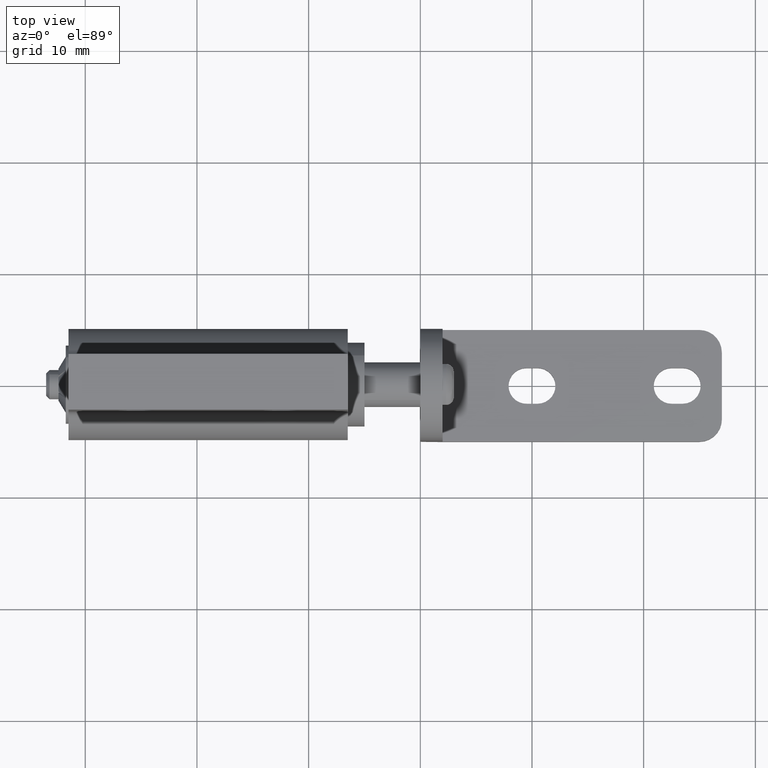
[diagram: clean part render]
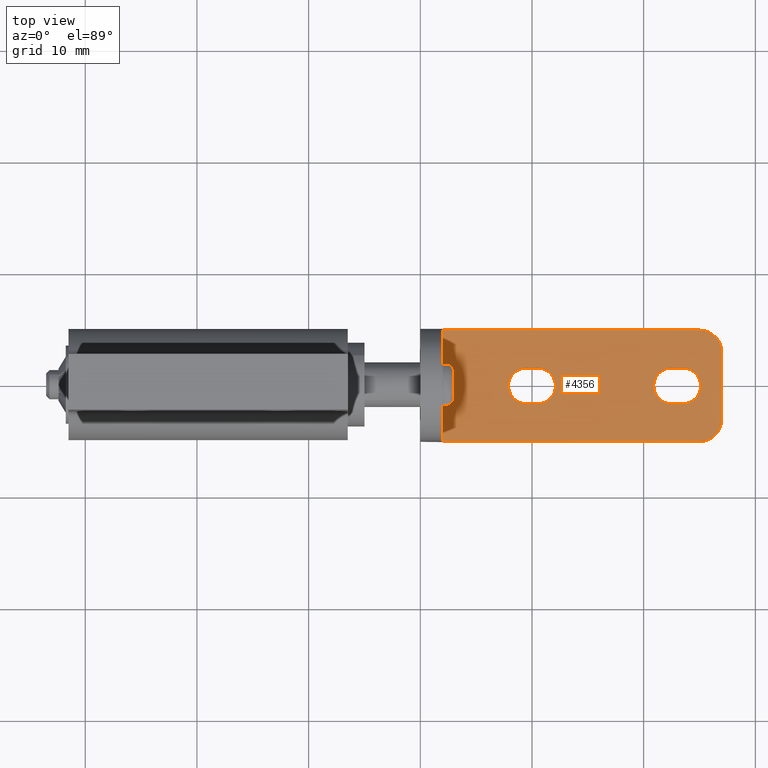
[diagram: same view with one face highlighted and labeled with its STEP entity id]
A machine part, top view. The second image highlights one B-rep face of the part: STEP entity #4356.
In plain terms, the highlighted face is a freeform B-spline surface patch.
Its self-contained STEP definition (entity closure, byte-faithful):
#4144=CARTESIAN_POINT('',(0.751250048454852,-5.499499980618060,-5.999999999999920));
#4145=CARTESIAN_POINT('',(28.248750622097401,-5.499499980618060,-5.999999999999920));
#4146=CARTESIAN_POINT('',(0.751250048454852,5.499500248838961,-5.999999999999920));
#4147=CARTESIAN_POINT('',(28.248750622097401,5.499500248838961,-5.999999999999920));
#4148=B_SPLINE_SURFACE_WITH_KNOTS('',1,1,((#4144,#4146),(#4145,#4147)),.UNSPECIFIED.,.F.,.F.,.U.,(2,2),(2,2),(0.0,27.497500573642551),(0.0,10.999000229457019),.UNSPECIFIED.);
#4149=CARTESIAN_POINT('',(2.0,5.0,-5.999999999999920));
#4150=VERTEX_POINT('',#4149);
#4151=CARTESIAN_POINT('',(25.0,5.0,-5.999999999999890));
#4152=VERTEX_POINT('',#4151);
#4153=CARTESIAN_POINT('',(2.0,5.0,-5.999999999999920));
#4154=CARTESIAN_POINT('',(25.0,5.0,-5.999999999999890));
#4155=QUASI_UNIFORM_CURVE('',1,(#4153,#4154),.UNSPECIFIED.,.F.,.U.);
#4156=EDGE_CURVE('',#4150,#4152,#4155,.T.);
#4157=ORIENTED_EDGE('',*,*,#4156,.F.);
#4158=CARTESIAN_POINT('',(2.0,-5.0,-5.999999999999920));
#4159=VERTEX_POINT('',#4158);
#4160=CARTESIAN_POINT('',(2.0,5.0,-5.999999999999920));
#4161=CARTESIAN_POINT('',(2.0,-5.0,-5.999999999999920));
#4162=QUASI_UNIFORM_CURVE('',1,(#4160,#4161),.UNSPECIFIED.,.F.,.U.);
#4163=EDGE_CURVE('',#4150,#4159,#4162,.T.);
#4164=ORIENTED_EDGE('',*,*,#4163,.T.);
#4165=CARTESIAN_POINT('',(25.0,-5.0,-5.999999999999890));
#4166=VERTEX_POINT('',#4165);
#4167=CARTESIAN_POINT('',(25.0,-5.0,-5.999999999999890));
#4168=CARTESIAN_POINT('',(2.0,-5.0,-5.999999999999920));
#4169=QUASI_UNIFORM_CURVE('',1,(#4167,#4168),.UNSPECIFIED.,.F.,.U.);
#4170=EDGE_CURVE('',#4166,#4159,#4169,.T.);
#4171=ORIENTED_EDGE('',*,*,#4170,.F.);
#4172=CARTESIAN_POINT('',(27.0,-3.0,-5.999999999999890));
#4173=VERTEX_POINT('',#4172);
#4174=CARTESIAN_POINT('',(25.0,-5.0,-5.999999999999890));
#4175=CARTESIAN_POINT('',(25.229101298612349,-5.000175970946732,-5.999999999999907));
#4176=CARTESIAN_POINT('',(25.572595589733041,-4.940290055348859,-5.999999999999865));
#4177=CARTESIAN_POINT('',(25.968257489761481,-4.759000320419328,-5.999999999999901));
#4178=CARTESIAN_POINT('',(26.276344513602730,-4.555916297014519,-5.999999999999915));
#4179=CARTESIAN_POINT('',(26.559530381454088,-4.279599096245009,-5.999999999999869));
#4180=CARTESIAN_POINT('',(26.777225957385429,-3.940378293420738,-5.999999999999935));
#4181=CARTESIAN_POINT('',(26.949908898931341,-3.523531810703181,-5.999999999999752));
#4182=CARTESIAN_POINT('',(27.000132040713691,-3.212731915100730,-6.000000000000080));
#4183=CARTESIAN_POINT('',(27.0,-3.0,-5.999999999999890));
#4184=B_SPLINE_CURVE_WITH_KNOTS('',3,(#4174,#4175,#4176,#4177,#4178,#4179,#4180,#4181,#4182,#4183),.UNSPECIFIED.,.F.,.U.,(4,1,1,1,1,1,1,4),(0.000000074897178,0.687225974660093,1.030846058387739,1.300831581982499,1.791700630484696,2.208942672249622,2.503475914182970,3.141612365757053),.UNSPECIFIED.);
#4185=EDGE_CURVE('',#4166,#4173,#4184,.T.);
#4186=ORIENTED_EDGE('',*,*,#4185,.T.);
#4187=CARTESIAN_POINT('',(27.0,3.0,-5.999999999999890));
#4188=VERTEX_POINT('',#4187);
#4189=CARTESIAN_POINT('',(27.0,3.0,-5.999999999999890));
#4190=CARTESIAN_POINT('',(27.0,-3.0,-5.999999999999890));
#4191=QUASI_UNIFORM_CURVE('',1,(#4189,#4190),.UNSPECIFIED.,.F.,.U.);
#4192=EDGE_CURVE('',#4188,#4173,#4191,.T.);
#4193=ORIENTED_EDGE('',*,*,#4192,.F.);
#4194=CARTESIAN_POINT('',(27.0,3.0,-5.999999999999890));
#4195=CARTESIAN_POINT('',(27.000008992554459,3.122716183516850,-5.999999999999885));
#4196=CARTESIAN_POINT('',(26.975091084685371,3.392699853700532,-5.999999999999919));
#4197=CARTESIAN_POINT('',(26.865180732788328,3.755026520126796,-5.999999999999838));
#4198=CARTESIAN_POINT('',(26.681595443398511,4.103601488064341,-5.999999999999973));
#4199=CARTESIAN_POINT('',(26.411303088976400,4.445685483341501,-5.999999999999852));
#4200=CARTESIAN_POINT('',(26.044786401452530,4.728114787095117,-5.999999999999679));
#4201=CARTESIAN_POINT('',(25.556252822054152,4.944629541255508,-6.000000000000235));
#4202=CARTESIAN_POINT('',(25.212727886733251,5.000127405484935,-5.999999999999698));
#4203=CARTESIAN_POINT('',(25.0,5.0,-5.999999999999890));
#4204=B_SPLINE_CURVE_WITH_KNOTS('',3,(#4194,#4195,#4196,#4197,#4198,#4199,#4200,#4201,#4202,#4203),.UNSPECIFIED.,.F.,.U.,(4,1,1,1,1,1,1,4),(0.000000074891697,0.368152309377549,0.809947288283777,1.129017942045743,1.546284932785509,2.110768140818327,2.503475914182498,3.141612365757115),.UNSPECIFIED.);
#4205=EDGE_CURVE('',#4188,#4152,#4204,.T.);
#4206=ORIENTED_EDGE('',*,*,#4205,.T.);
#4207=EDGE_LOOP('',(#4157,#4164,#4171,#4186,#4193,#4206));
#4208=FACE_OUTER_BOUND('',#4207,.T.);
#4209=CARTESIAN_POINT('',(9.499999999999321,-1.599999999999910,-5.999999999999890));
#4210=VERTEX_POINT('',#4209);
#4211=CARTESIAN_POINT('',(10.500000000000339,-1.599999999999910,-5.999999999999890));
#4212=VERTEX_POINT('',#4211);
#4213=CARTESIAN_POINT('',(9.499999999999321,-1.599999999999910,-5.999999999999890));
#4214=CARTESIAN_POINT('',(10.500000000000339,-1.599999999999910,-5.999999999999890));
#4215=QUASI_UNIFORM_CURVE('',1,(#4213,#4214),.UNSPECIFIED.,.F.,.U.);
#4216=EDGE_CURVE('',#4210,#4212,#4215,.T.);
#4217=ORIENTED_EDGE('',*,*,#4216,.F.);
#4218=CARTESIAN_POINT('',(7.899999999999650,-0.000000876066275,-5.999999999999890));
#4219=VERTEX_POINT('',#4218);
#4220=CARTESIAN_POINT('',(7.899999999999650,-0.000000876066275,-5.999999999999890));
#4221=CARTESIAN_POINT('',(7.899930954234748,-0.157085153060016,-5.999999999999887));
#4222=CARTESIAN_POINT('',(7.946638123642404,-0.471213233963859,-5.999999999999893));
#4223=CARTESIAN_POINT('',(8.127628203936977,-0.854007373605920,-5.999999999999891));
#4224=CARTESIAN_POINT('',(8.361345646486987,-1.138659330561994,-5.999999999999891));
#4225=CARTESIAN_POINT('',(8.605357094624653,-1.338920417722759,-5.999999999999892));
#4226=CARTESIAN_POINT('',(8.976544413417017,-1.537393991827413,-5.999999999999887));
#4227=CARTESIAN_POINT('',(9.290517388937019,-1.600234236174146,-5.999999999999897));
#4228=CARTESIAN_POINT('',(9.499999999999321,-1.599999999999910,-5.999999999999890));
#4229=B_SPLINE_CURVE_WITH_KNOTS('',3,(#4220,#4221,#4222,#4223,#4224,#4225,#4226,#4227,#4228),.UNSPECIFIED.,.F.,.U.,(4,1,1,1,1,1,4),(0.000000024243023,0.471244596527504,0.942508694478236,1.256668358901865,1.570827732921744,1.885002528225996,2.513336697157448),.UNSPECIFIED.);
#4230=EDGE_CURVE('',#4219,#4210,#4229,.T.);
#4231=ORIENTED_EDGE('',*,*,#4230,.F.);
#4232=CARTESIAN_POINT('',(9.499999999999321,1.600000000000000,-5.999999999999890));
#4233=VERTEX_POINT('',#4232);
#4234=CARTESIAN_POINT('',(9.499999999999321,1.600000000000000,-5.999999999999890));
#4235=CARTESIAN_POINT('',(9.342913029642439,1.600074970997122,-5.999999999999882));
#4236=CARTESIAN_POINT('',(9.081157276978733,1.561115276048454,-5.999999999999907));
#4237=CARTESIAN_POINT('',(8.740904265006304,1.420169838847041,-5.999999999999876));
#4238=CARTESIAN_POINT('',(8.434650481340130,1.215584147826057,-5.999999999999888));
#4239=CARTESIAN_POINT('',(8.185820296293517,0.941092164951092,-5.999999999999912));
#4240=CARTESIAN_POINT('',(8.024677508870076,0.639430013100027,-5.999999999999862));
#4241=CARTESIAN_POINT('',(7.925856384613207,0.340319600040738,-5.999999999999917));
#4242=CARTESIAN_POINT('',(7.899965356264975,0.130900052835305,-5.999999999999873));
#4243=CARTESIAN_POINT('',(7.899999999999650,-0.000000876066275,-5.999999999999890));
#4244=B_SPLINE_CURVE_WITH_KNOTS('',3,(#4234,#4235,#4236,#4237,#4238,#4239,#4240,#4241,#4242,#4243),.UNSPECIFIED.,.F.,.U.,(4,1,1,1,1,1,1,4),(0.000000023041375,0.471244780649425,0.785423896812353,1.099589344189616,1.570828349246691,1.885003269217762,2.120636193895954,2.513337684713010),.UNSPECIFIED.);
#4245=EDGE_CURVE('',#4233,#4219,#4244,.T.);
#4246=ORIENTED_EDGE('',*,*,#4245,.F.);
#4247=CARTESIAN_POINT('',(10.500000000000339,1.600000000000000,-5.999999999999890));
#4248=VERTEX_POINT('',#4247);
#4249=CARTESIAN_POINT('',(10.500000000000339,1.600000000000000,-5.999999999999890));
#4250=CARTESIAN_POINT('',(9.499999999999321,1.600000000000000,-5.999999999999890));
#4251=QUASI_UNIFORM_CURVE('',1,(#4249,#4250),.UNSPECIFIED.,.F.,.U.);
#4252=EDGE_CURVE('',#4248,#4233,#4251,.T.);
#4253=ORIENTED_EDGE('',*,*,#4252,.F.);
#4254=CARTESIAN_POINT('',(12.100000000000010,0.000000876066298,-5.999999999999889));
#4255=VERTEX_POINT('',#4254);
#4256=CARTESIAN_POINT('',(12.100000000000010,0.000000876066298,-5.999999999999889));
#4257=CARTESIAN_POINT('',(12.100076960069041,0.157089367976271,-5.999999999999889));
#4258=CARTESIAN_POINT('',(12.065005063557489,0.392662628713046,-5.999999999999891));
#4259=CARTESIAN_POINT('',(11.942173942035840,0.711059727324396,-5.999999999999887));
#4260=CARTESIAN_POINT('',(11.779912069732640,0.981847419181617,-5.999999999999897));
#4261=CARTESIAN_POINT('',(11.543456785460609,1.230182762675325,-5.999999999999871));
#4262=CARTESIAN_POINT('',(11.259099112727240,1.420173450062146,-5.999999999999929));
#4263=CARTESIAN_POINT('',(10.918842336454629,1.561115346589316,-5.999999999999855));
#4264=CARTESIAN_POINT('',(10.657087034021259,1.600075195214799,-5.999999999999905));
#4265=CARTESIAN_POINT('',(10.500000000000339,1.600000000000000,-5.999999999999890));
#4266=B_SPLINE_CURVE_WITH_KNOTS('',3,(#4256,#4257,#4258,#4259,#4260,#4261,#4262,#4263,#4264,#4265),.UNSPECIFIED.,.F.,.U.,(4,1,1,1,1,1,1,4),(0.000000024243588,0.471244596527909,0.706879246523735,1.021049268495416,1.413747510192749,1.727913035025433,2.042092021713942,2.513336697157483),.UNSPECIFIED.);
#4267=EDGE_CURVE('',#4255,#4248,#4266,.T.);
#4268=ORIENTED_EDGE('',*,*,#4267,.F.);
#4269=CARTESIAN_POINT('',(10.500000000000339,-1.599999999999910,-5.999999999999890));
#4270=CARTESIAN_POINT('',(10.709460513686549,-1.600209713929248,-5.999999999999869));
#4271=CARTESIAN_POINT('',(11.075845954610360,-1.526990796331000,-5.999999999999932));
#4272=CARTESIAN_POINT('',(11.484377838452140,-1.282014573674328,-5.999999999999851));
#4273=CARTESIAN_POINT('',(11.782029302703091,-0.984390478947366,-5.999999999999923));
#4274=CARTESIAN_POINT('',(12.026970343649531,-0.575829757406991,-5.999999999999862));
#4275=CARTESIAN_POINT('',(12.100219917556769,-0.209466451154226,-5.999999999999897));
#4276=CARTESIAN_POINT('',(12.100000000000010,0.000000876066298,-5.999999999999889));
#4277=B_SPLINE_CURVE_WITH_KNOTS('',3,(#4269,#4270,#4271,#4272,#4273,#4274,#4275,#4276),.UNSPECIFIED.,.F.,.U.,(4,1,1,1,1,4),(0.000000023042294,0.628334493925762,1.099589344189766,1.413748063708039,1.885003269217731,2.513337684712968),.UNSPECIFIED.);
#4278=EDGE_CURVE('',#4212,#4255,#4277,.T.);
#4279=ORIENTED_EDGE('',*,*,#4278,.F.);
#4280=EDGE_LOOP('',(#4217,#4231,#4246,#4253,#4268,#4279));
#4281=FACE_BOUND('',#4280,.T.);
#4282=CARTESIAN_POINT('',(23.500000000000352,1.599999999999910,-5.999999999999890));
#4283=VERTEX_POINT('',#4282);
#4284=CARTESIAN_POINT('',(22.499999999999250,1.599999999999910,-5.999999999999890));
#4285=VERTEX_POINT('',#4284);
#4286=CARTESIAN_POINT('',(23.500000000000352,1.599999999999910,-5.999999999999890));
#4287=CARTESIAN_POINT('',(22.499999999999250,1.599999999999910,-5.999999999999890));
#4288=QUASI_UNIFORM_CURVE('',1,(#4286,#4287),.UNSPECIFIED.,.F.,.U.);
#4289=EDGE_CURVE('',#4283,#4285,#4288,.T.);
#4290=ORIENTED_EDGE('',*,*,#4289,.F.);
#4291=CARTESIAN_POINT('',(25.100000000000019,0.000000876066298,-5.999999999999889));
#4292=VERTEX_POINT('',#4291);
#4293=CARTESIAN_POINT('',(25.100000000000019,0.000000876066298,-5.999999999999889));
#4294=CARTESIAN_POINT('',(25.100213319210301,0.209486858936259,-5.999999999999890));
#4295=CARTESIAN_POINT('',(25.037389952760090,0.523433326622136,-5.999999999999889));
#4296=CARTESIAN_POINT('',(24.814162727790539,0.941088940609201,-5.999999999999887));
#4297=CARTESIAN_POINT('',(24.565350021458219,1.215585605246862,-5.999999999999893));
#4298=CARTESIAN_POINT('',(24.259094956786431,1.420167841987817,-5.999999999999885));
#4299=CARTESIAN_POINT('',(23.918845073894691,1.561126861632027,-5.999999999999890));
#4300=CARTESIAN_POINT('',(23.657085199171899,1.600063588880018,-5.999999999999893));
#4301=CARTESIAN_POINT('',(23.500000000000352,1.599999999999910,-5.999999999999890));
#4302=B_SPLINE_CURVE_WITH_KNOTS('',3,(#4293,#4294,#4295,#4296,#4297,#4298,#4299,#4300,#4301),.UNSPECIFIED.,.F.,.U.,(4,1,1,1,1,1,4),(0.000000024242703,0.628334248026976,0.942508694477993,1.413747510192394,1.727913035025169,2.042092021713769,2.513336697157411),.UNSPECIFIED.);
#4303=EDGE_CURVE('',#4292,#4283,#4302,.T.);
#4304=ORIENTED_EDGE('',*,*,#4303,.F.);
#4305=CARTESIAN_POINT('',(23.500000000000352,-1.599999999999910,-5.999999999999890));
#4306=VERTEX_POINT('',#4305);
#4307=CARTESIAN_POINT('',(23.500000000000352,-1.599999999999910,-5.999999999999890));
#4308=CARTESIAN_POINT('',(23.657087667688309,-1.600074952450935,-5.999999999999884));
#4309=CARTESIAN_POINT('',(23.918840934255329,-1.561115495927941,-5.999999999999900));
#4310=CARTESIAN_POINT('',(24.259100875822970,-1.420171931218506,-5.999999999999883));
#4311=CARTESIAN_POINT('',(24.521576441416030,-1.244790835991941,-5.999999999999895));
#4312=CARTESIAN_POINT('',(24.726181932976839,-1.040171991387414,-5.999999999999884));
#4313=CARTESIAN_POINT('',(24.892451962037459,-0.804084707074152,-5.999999999999885));
#4314=CARTESIAN_POINT('',(25.049951066179059,-0.471164617096889,-5.999999999999918));
#4315=CARTESIAN_POINT('',(25.100141107871220,-0.183278424803693,-5.999999999999877));
#4316=CARTESIAN_POINT('',(25.100000000000019,0.000000876066298,-5.999999999999889));
#4317=B_SPLINE_CURVE_WITH_KNOTS('',3,(#4307,#4308,#4309,#4310,#4311,#4312,#4313,#4314,#4315,#4316),.UNSPECIFIED.,.F.,.U.,(4,1,1,1,1,1,1,4),(0.000000023042154,0.471244780649982,0.785423896812821,1.099589344189887,1.413748063708086,1.649370343937236,1.963548351688710,2.513337684712949),.UNSPECIFIED.);
#4318=EDGE_CURVE('',#4306,#4292,#4317,.T.);
#4319=ORIENTED_EDGE('',*,*,#4318,.F.);
#4320=CARTESIAN_POINT('',(22.499999999999250,-1.599999999999910,-5.999999999999890));
#4321=VERTEX_POINT('',#4320);
#4322=CARTESIAN_POINT('',(22.499999999999250,-1.599999999999910,-5.999999999999890));
#4323=CARTESIAN_POINT('',(23.500000000000352,-1.599999999999910,-5.999999999999890));
#4324=QUASI_UNIFORM_CURVE('',1,(#4322,#4323),.UNSPECIFIED.,.F.,.U.);
#4325=EDGE_CURVE('',#4321,#4306,#4324,.T.);
#4326=ORIENTED_EDGE('',*,*,#4325,.F.);
#4327=CARTESIAN_POINT('',(20.899999999999579,-0.000000876066298,-5.999999999999889));
#4328=VERTEX_POINT('',#4327);
#4329=CARTESIAN_POINT('',(20.899999999999579,-0.000000876066298,-5.999999999999889));
#4330=CARTESIAN_POINT('',(20.899856728481591,-0.183282800042188,-5.999999999999906));
#4331=CARTESIAN_POINT('',(20.945492123254560,-0.444988319097453,-5.999999999999864));
#4332=CARTESIAN_POINT('',(21.094455638483709,-0.780968581771955,-5.999999999999899));
#4333=CARTESIAN_POINT('',(21.255207392238511,-1.021578465309715,-5.999999999999901));
#4334=CARTESIAN_POINT('',(21.478423558670251,-1.244789028873057,-5.999999999999879));
#4335=CARTESIAN_POINT('',(21.740901733617790,-1.420170972293794,-5.999999999999861));
#4336=CARTESIAN_POINT('',(22.081155044833022,-1.561126917248538,-5.999999999999936));
#4337=CARTESIAN_POINT('',(22.342914715105589,-1.600063427700445,-5.999999999999869));
#4338=CARTESIAN_POINT('',(22.499999999999250,-1.599999999999910,-5.999999999999890));
#4339=B_SPLINE_CURVE_WITH_KNOTS('',3,(#4329,#4330,#4331,#4332,#4333,#4334,#4335,#4336,#4337,#4338),.UNSPECIFIED.,.F.,.U.,(4,1,1,1,1,1,1,4),(0.000000024242969,0.549789170602804,0.785423589251902,1.099588913951182,1.413747510192557,1.727913035025333,2.042092021713936,2.513336697157418),.UNSPECIFIED.);
#4340=EDGE_CURVE('',#4328,#4321,#4339,.T.);
#4341=ORIENTED_EDGE('',*,*,#4340,.F.);
#4342=CARTESIAN_POINT('',(22.499999999999250,1.599999999999910,-5.999999999999890));
#4343=CARTESIAN_POINT('',(22.290527676612399,1.600226363801980,-5.999999999999896));
#4344=CARTESIAN_POINT('',(21.924182876772019,1.526952313337186,-5.999999999999879));
#4345=CARTESIAN_POINT('',(21.515591789408280,1.282046923117937,-5.999999999999893));
#4346=CARTESIAN_POINT('',(21.273825902315739,1.040161163218487,-5.999999999999894));
#4347=CARTESIAN_POINT('',(21.107547308021530,0.804084137854401,-5.999999999999894));
#4348=CARTESIAN_POINT('',(20.950049517835119,0.471165268454424,-5.999999999999898));
#4349=CARTESIAN_POINT('',(20.899859039076070,0.183278007204411,-5.999999999999878));
#4350=CARTESIAN_POINT('',(20.899999999999579,-0.000000876066298,-5.999999999999889));
#4351=B_SPLINE_CURVE_WITH_KNOTS('',3,(#4342,#4343,#4344,#4345,#4346,#4347,#4348,#4349,#4350),.UNSPECIFIED.,.F.,.U.,(4,1,1,1,1,1,4),(0.000000023041747,0.628334493925488,1.099589344189715,1.413748063708040,1.649370343937211,1.963548351688709,2.513337684712954),.UNSPECIFIED.);
#4352=EDGE_CURVE('',#4285,#4328,#4351,.T.);
#4353=ORIENTED_EDGE('',*,*,#4352,.F.);
#4354=EDGE_LOOP('',(#4290,#4304,#4319,#4326,#4341,#4353));
#4355=FACE_BOUND('',#4354,.T.);
#4356=ADVANCED_FACE('',(#4208,#4281,#4355),#4148,.T.);